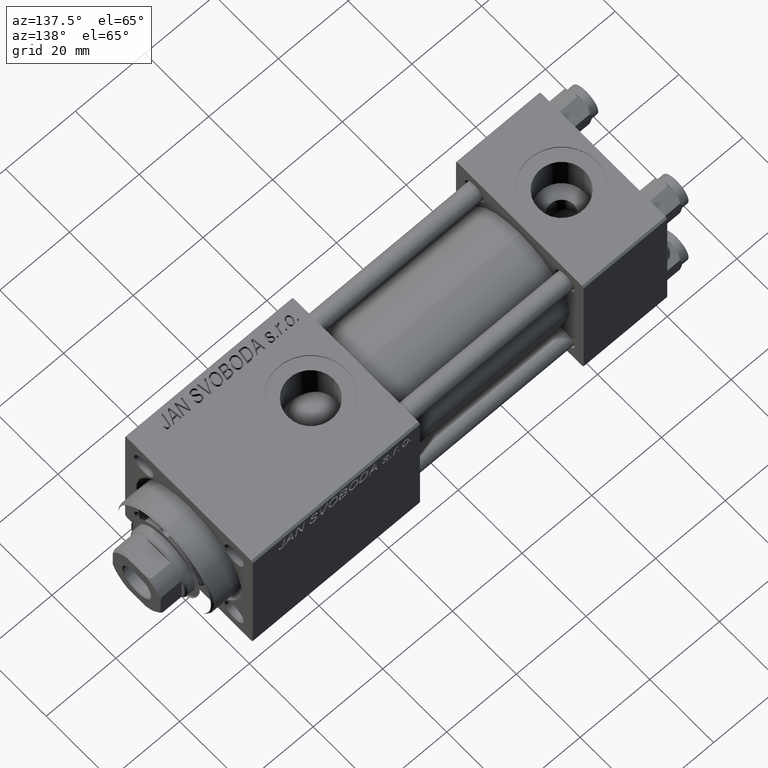
[diagram: clean part render]
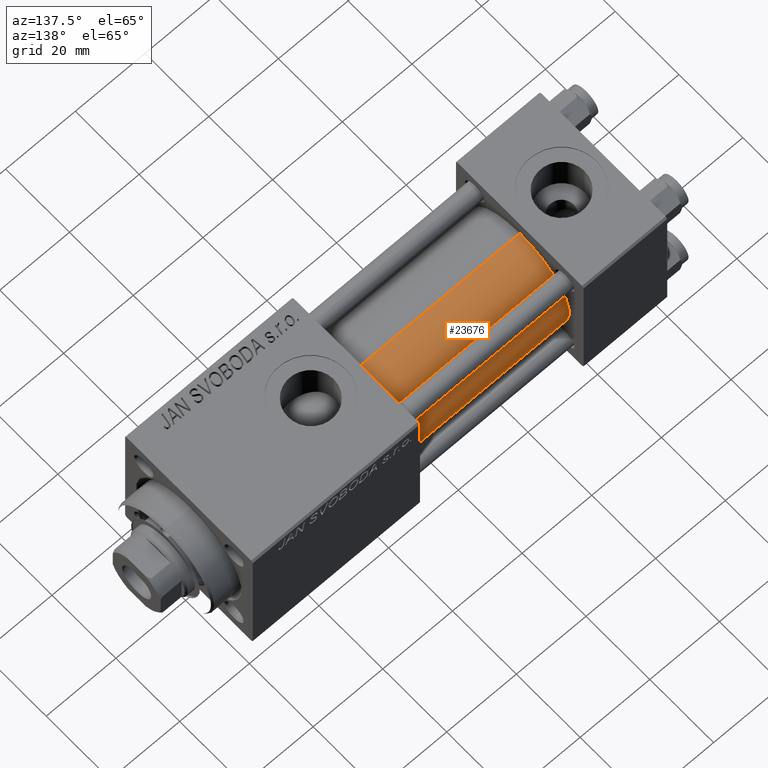
[diagram: same view with one face highlighted and labeled with its STEP entity id]
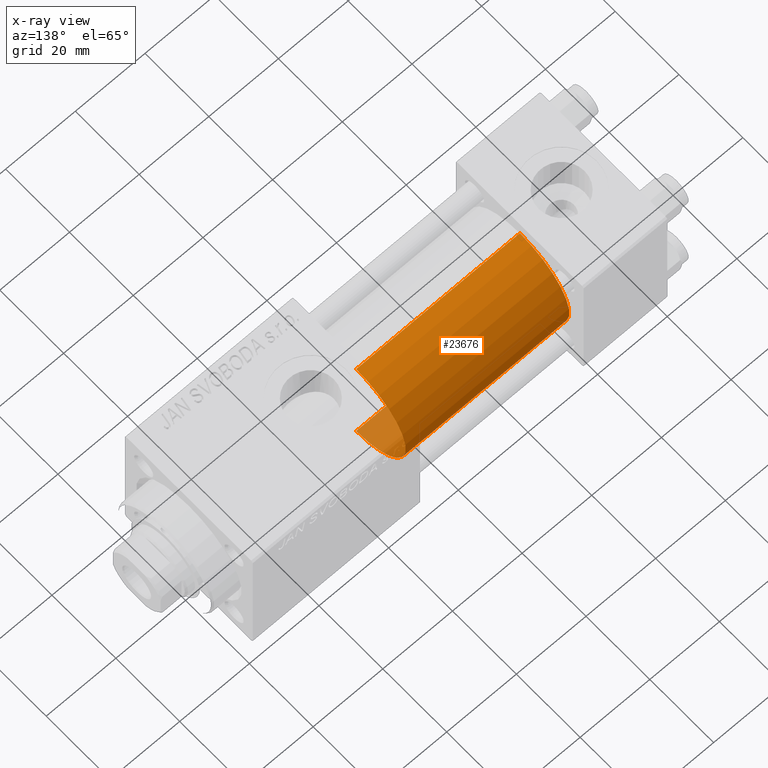
[diagram: x-ray of the same camera — body ghosted, the highlighted face saturated]
A machine part, auxiliary view. The second image highlights one B-rep face of the part: STEP entity #23676.
The next image is the same camera in x-ray: the body ghosted, the highlighted face saturated — about 6% of this face is hidden behind the body in this view.
In plain terms, the highlighted cylindrical surface (partial cylindrical patch) has radius 15.5 mm, axis along (-1, -0, -0).
Its self-contained STEP definition (entity closure, byte-faithful):
#1907 = CARTESIAN_POINT ( 'NONE',  ( 71.00000000000001421, -2.602085213965210642E-15, 0.000000000000000000 ) ) ;
#2973 = CIRCLE ( 'NONE', #19853, 15.50000000000000000 ) ;
#7035 = CARTESIAN_POINT ( 'NONE',  ( 71.00000000000001421, -2.602085213965210642E-15, 0.000000000000000000 ) ) ;
#11021 = EDGE_CURVE ( 'NONE', #45105, #49281, #20320, .T. ) ;
#12245 = CARTESIAN_POINT ( 'NONE',  ( 24.00000000000000000, -7.038826752868131828E-16, -15.50000000000000000 ) ) ;
#14034 = CARTESIAN_POINT ( 'NONE',  ( 71.00000000000001421, -2.602085213965210642E-15, 15.50000000000000000 ) ) ;
#18016 = CARTESIAN_POINT ( 'NONE',  ( 71.00000000000001421, -2.602085213965210642E-15, 15.50000000000000000 ) ) ;
#18042 = DIRECTION ( 'NONE',  ( 1.000000000000000000, 0.000000000000000000, 0.000000000000000000 ) ) ;
#19215 = DIRECTION ( 'NONE',  ( -1.000000000000000000, -0.000000000000000000, -0.000000000000000000 ) ) ;
#19853 = AXIS2_PLACEMENT_3D ( 'NONE', #38670, #34706, #27030 ) ;
#20320 = CIRCLE ( 'NONE', #51523, 15.50000000000000000 ) ;
#20432 = DIRECTION ( 'NONE',  ( -1.000000000000000000, -0.000000000000000000, -0.000000000000000000 ) ) ;
#20919 = VECTOR ( 'NONE', #42031, 1000.000000000000000 ) ;
#22727 = LINE ( 'NONE', #14034, #20919 ) ;
#23676 = ADVANCED_FACE ( 'NONE', ( #34266 ), #42979, .T. ) ;
#23943 = EDGE_LOOP ( 'NONE', ( #52022, #36191, #45396, #36714 ) ) ;
#24889 = CARTESIAN_POINT ( 'NONE',  ( 71.00000000000001421, -7.038826752868131828E-16, -15.50000000000000000 ) ) ;
#26850 = CARTESIAN_POINT ( 'NONE',  ( 24.00000000000000000, -2.602085213965210642E-15, 15.50000000000000000 ) ) ;
#27030 = DIRECTION ( 'NONE',  ( 0.000000000000000000, 0.000000000000000000, 1.000000000000000000 ) ) ;
#28971 = EDGE_CURVE ( 'NONE', #29136, #47986, #2973, .T. ) ;
#29069 = AXIS2_PLACEMENT_3D ( 'NONE', #7035, #19215, #30043 ) ;
#29136 = VERTEX_POINT ( 'NONE', #12245 ) ;
#30043 = DIRECTION ( 'NONE',  ( 0.000000000000000000, 0.000000000000000000, 1.000000000000000000 ) ) ;
#33786 = VECTOR ( 'NONE', #20432, 1000.000000000000000 ) ;
#34266 = FACE_OUTER_BOUND ( 'NONE', #23943, .T. ) ;
#34706 = DIRECTION ( 'NONE',  ( 1.000000000000000000, 0.000000000000000000, 0.000000000000000000 ) ) ;
#36191 = ORIENTED_EDGE ( 'NONE', *, *, #50035, .T. ) ;
#36714 = ORIENTED_EDGE ( 'NONE', *, *, #42362, .F. ) ;
#38670 = CARTESIAN_POINT ( 'NONE',  ( 24.00000000000000000, -2.602085213965210642E-15, 0.000000000000000000 ) ) ;
#40499 = LINE ( 'NONE', #24889, #33786 ) ;
#41552 = DIRECTION ( 'NONE',  ( 0.000000000000000000, 0.000000000000000000, -1.000000000000000000 ) ) ;
#42031 = DIRECTION ( 'NONE',  ( -1.000000000000000000, -0.000000000000000000, -0.000000000000000000 ) ) ;
#42362 = EDGE_CURVE ( 'NONE', #49281, #47986, #22727, .T. ) ;
#42979 = CYLINDRICAL_SURFACE ( 'NONE', #29069, 15.50000000000000000 ) ;
#45105 = VERTEX_POINT ( 'NONE', #52227 ) ;
#45396 = ORIENTED_EDGE ( 'NONE', *, *, #28971, .T. ) ;
#47986 = VERTEX_POINT ( 'NONE', #26850 ) ;
#49281 = VERTEX_POINT ( 'NONE', #18016 ) ;
#50035 = EDGE_CURVE ( 'NONE', #45105, #29136, #40499, .T. ) ;
#51523 = AXIS2_PLACEMENT_3D ( 'NONE', #1907, #18042, #41552 ) ;
#52022 = ORIENTED_EDGE ( 'NONE', *, *, #11021, .F. ) ;
#52227 = CARTESIAN_POINT ( 'NONE',  ( 71.00000000000001421, -7.038826752868131828E-16, -15.50000000000000000 ) ) ;